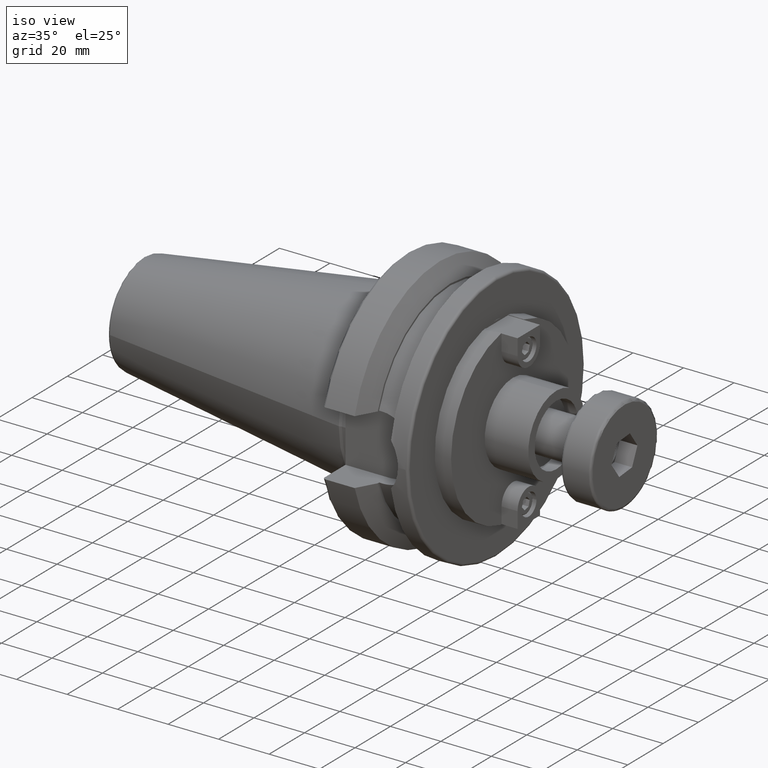
[diagram: clean part render]
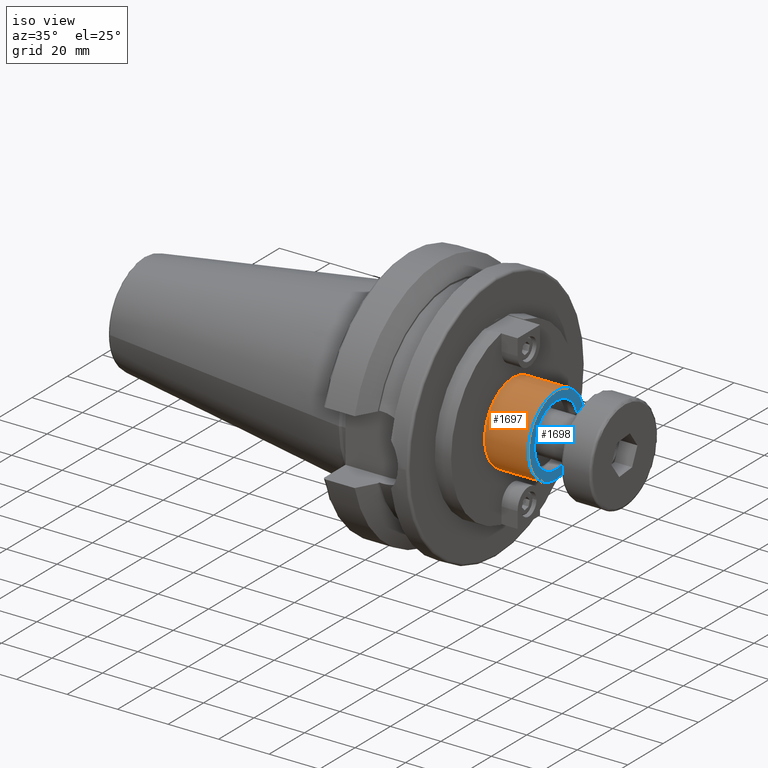
[diagram: same view with the hole feature highlighted: cylindrical wall and planar end face, labeled with their STEP entity ids]
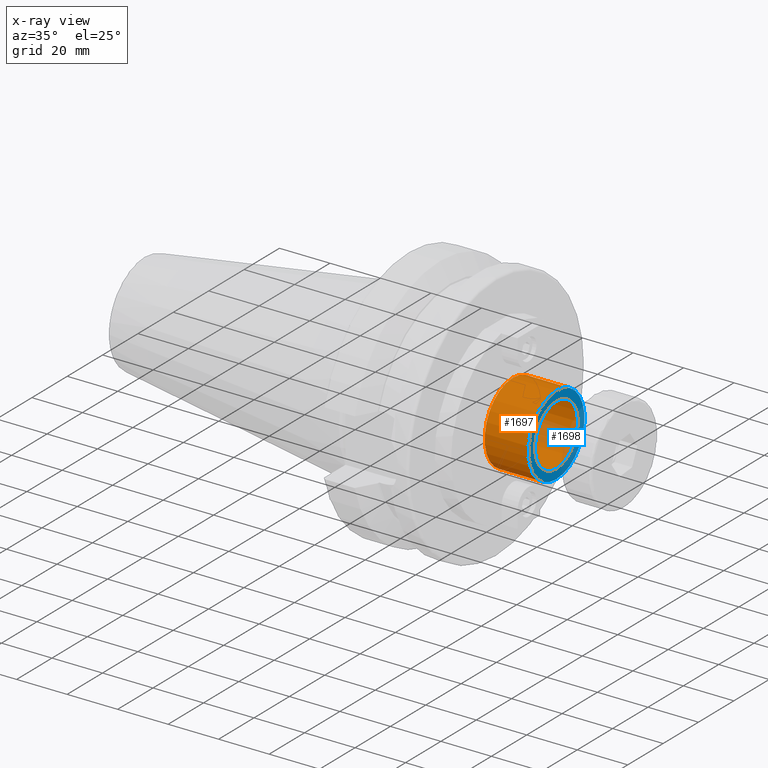
[diagram: x-ray of the same camera — body ghosted, the hole faces saturated]
A machine part, iso view. The highlighted faces form one hole feature of diameter 31.75 mm: the cylindrical wall (entity #1697, orange) and its adjacent planar end face (entity #1698, blue) — they share a circular edge in the B-rep.
The next image is the same camera in x-ray (body ghosted, the hole faces saturated) — the bore reads through the body.
Wall:
#97=CYLINDRICAL_SURFACE('',#1925,15.875);
#166=CIRCLE('',#1924,15.875);
#167=CIRCLE('',#1926,15.875);
#267=FACE_OUTER_BOUND('',#375,.T.);
#375=EDGE_LOOP('',(#1213,#1214,#1215,#1216));
#500=LINE('',#2759,#620);
#620=VECTOR('',#2211,15.875);
#745=VERTEX_POINT('',#2754);
#746=VERTEX_POINT('',#2757);
#923=EDGE_CURVE('',#745,#745,#166,.T.);
#924=EDGE_CURVE('',#746,#746,#167,.T.);
#925=EDGE_CURVE('',#746,#745,#500,.T.);
#1213=ORIENTED_EDGE('',*,*,#924,.F.);
#1214=ORIENTED_EDGE('',*,*,#925,.T.);
#1215=ORIENTED_EDGE('',*,*,#923,.T.);
#1216=ORIENTED_EDGE('',*,*,#925,.F.);
#1697=ADVANCED_FACE('',(#267),#97,.T.);
#1924=AXIS2_PLACEMENT_3D('',#2755,#2205,#2206);
#1925=AXIS2_PLACEMENT_3D('',#2756,#2207,#2208);
#1926=AXIS2_PLACEMENT_3D('',#2758,#2209,#2210);
#2205=DIRECTION('center_axis',(1.,0.,0.));
#2206=DIRECTION('ref_axis',(0.,0.,-1.));
#2207=DIRECTION('center_axis',(1.,0.,0.));
#2208=DIRECTION('ref_axis',(0.,0.,-1.));
#2209=DIRECTION('center_axis',(1.,0.,0.));
#2210=DIRECTION('ref_axis',(0.,0.,-1.));
#2211=DIRECTION('',(-1.,0.,0.));
#2754=CARTESIAN_POINT('',(44.45,-1.94412679364642E-15,15.875));
#2755=CARTESIAN_POINT('Origin',(44.45,0.,0.));
#2756=CARTESIAN_POINT('Origin',(53.085,0.,0.));
#2757=CARTESIAN_POINT('',(61.72,-1.94412679364642E-15,15.875));
#2758=CARTESIAN_POINT('Origin',(61.72,0.,0.));
#2759=CARTESIAN_POINT('',(53.085,-1.94412679364642E-15,15.875));
End face:
#134=FACE_BOUND('',#377,.T.);
#167=CIRCLE('',#1926,15.875);
#168=CIRCLE('',#1928,12.25);
#268=FACE_OUTER_BOUND('',#376,.T.);
#376=EDGE_LOOP('',(#1217));
#377=EDGE_LOOP('',(#1218));
#746=VERTEX_POINT('',#2757);
#747=VERTEX_POINT('',#2761);
#924=EDGE_CURVE('',#746,#746,#167,.T.);
#926=EDGE_CURVE('',#747,#747,#168,.T.);
#1217=ORIENTED_EDGE('',*,*,#924,.T.);
#1218=ORIENTED_EDGE('',*,*,#926,.F.);
#1634=PLANE('',#1927);
#1698=ADVANCED_FACE('',(#268,#134),#1634,.T.);
#1926=AXIS2_PLACEMENT_3D('',#2758,#2209,#2210);
#1927=AXIS2_PLACEMENT_3D('',#2760,#2212,#2213);
#1928=AXIS2_PLACEMENT_3D('',#2762,#2214,#2215);
#2209=DIRECTION('center_axis',(1.,0.,0.));
#2210=DIRECTION('ref_axis',(0.,0.,-1.));
#2212=DIRECTION('center_axis',(1.,0.,0.));
#2213=DIRECTION('ref_axis',(0.,0.,-1.));
#2214=DIRECTION('center_axis',(1.,0.,0.));
#2215=DIRECTION('ref_axis',(0.,0.,-1.));
#2757=CARTESIAN_POINT('',(61.72,-1.94412679364642E-15,15.875));
#2758=CARTESIAN_POINT('Origin',(61.72,0.,0.));
#2760=CARTESIAN_POINT('Origin',(61.72,0.,-12.25));
#2761=CARTESIAN_POINT('',(61.72,-1.50019232895551E-15,12.25));
#2762=CARTESIAN_POINT('Origin',(61.72,0.,0.));